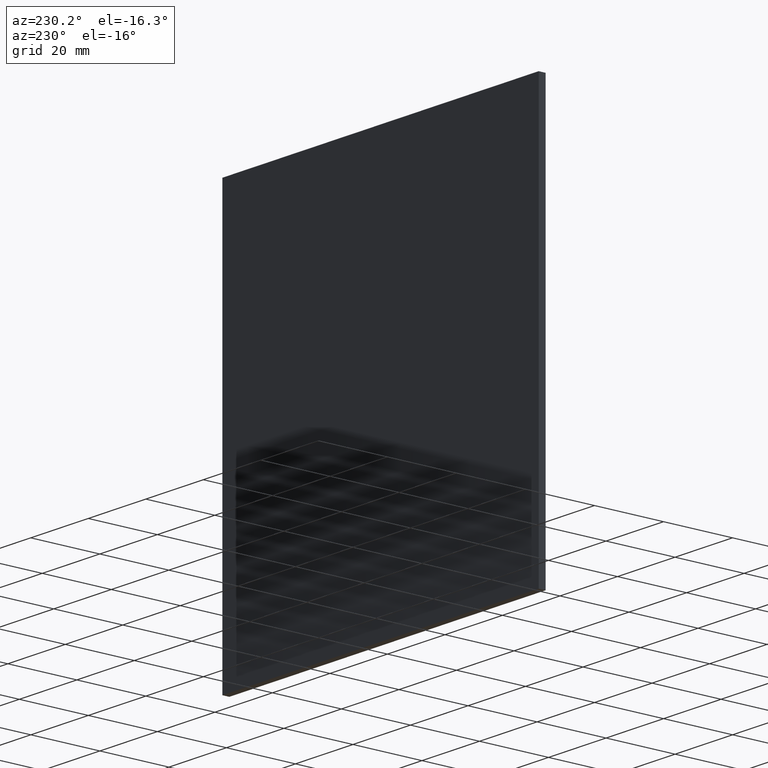
[diagram: clean part render]
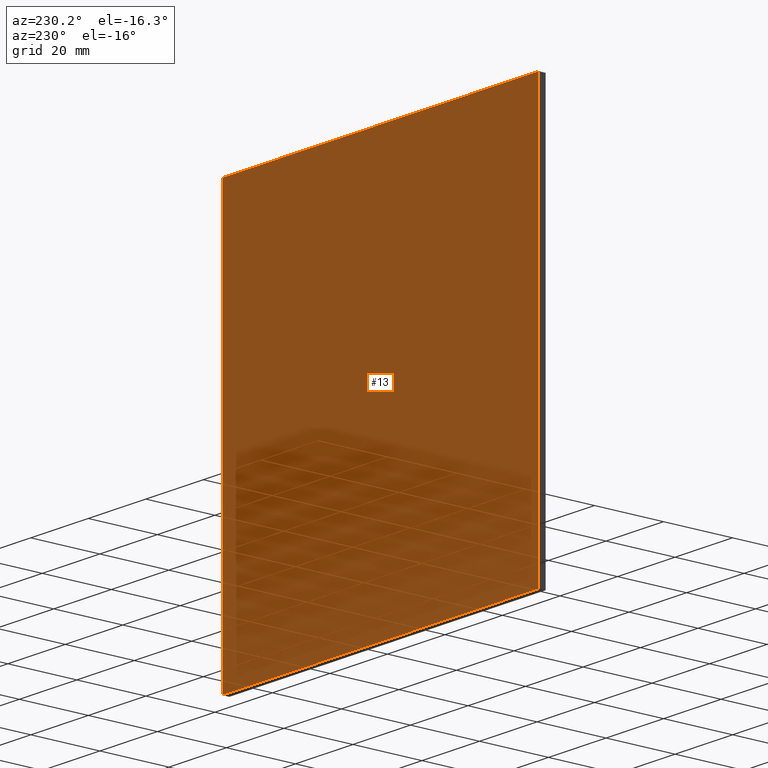
[diagram: same view with one face highlighted and labeled with its STEP entity id]
A machine part, auxiliary view. The second image highlights one B-rep face of the part: STEP entity #13.
In plain terms, the highlighted planar face has unit normal (0, 1, 0).
Its self-contained STEP definition (entity closure, byte-faithful):
#3 = DIRECTION ( 'NONE',  ( 0.0000000000000000000, -0.0000000000000000000, 1.000000000000000000 ) ) ;
#5 = DIRECTION ( 'NONE',  ( 1.734723475976807100E-016, 0.0000000000000000000, 1.000000000000000000 ) ) ;
#7 = VECTOR ( 'NONE', #10, 1000.000000000000000 ) ;
#10 = DIRECTION ( 'NONE',  ( -5.782411586589357400E-017, -0.0000000000000000000, -1.000000000000000000 ) ) ;
#13 = ADVANCED_FACE ( 'NONE', ( #15 ), #23, .T. ) ;
#15 = FACE_OUTER_BOUND ( 'NONE', #185, .T. ) ;
#17 = VERTEX_POINT ( 'NONE', #127 ) ;
#21 = DIRECTION ( 'NONE',  ( 0.0000000000000000000, 1.000000000000000000, 0.0000000000000000000 ) ) ;
#23 = PLANE ( 'NONE',  #139 ) ;
#25 = CARTESIAN_POINT ( 'NONE',  ( 55.00000000000000700, 2.000000000000000000, -60.00000000000002100 ) ) ;
#47 = VECTOR ( 'NONE', #100, 1000.000000000000000 ) ;
#58 = CARTESIAN_POINT ( 'NONE',  ( -54.99999999999998600, 2.000000000000000000, 59.99999999999997900 ) ) ;
#60 = ORIENTED_EDGE ( 'NONE', *, *, #71, .T. ) ;
#71 = EDGE_CURVE ( 'NONE', #17, #150, #176, .T. ) ;
#78 = LINE ( 'NONE', #126, #90 ) ;
#79 = VERTEX_POINT ( 'NONE', #124 ) ;
#82 = EDGE_CURVE ( 'NONE', #150, #173, #94, .T. ) ;
#90 = VECTOR ( 'NONE', #5, 1000.000000000000000 ) ;
#91 = EDGE_CURVE ( 'NONE', #173, #79, #78, .T. ) ;
#92 = CARTESIAN_POINT ( 'NONE',  ( -55.00000000000000700, 2.000000000000000000, -60.00000000000002100 ) ) ;
#94 = LINE ( 'NONE', #98, #128 ) ;
#98 = CARTESIAN_POINT ( 'NONE',  ( -55.00000000000000700, 2.000000000000000000, -60.00000000000002100 ) ) ;
#100 = DIRECTION ( 'NONE',  ( 1.000000000000000000, 0.0000000000000000000, 0.0000000000000000000 ) ) ;
#124 = CARTESIAN_POINT ( 'NONE',  ( -54.99999999999998600, 2.000000000000000000, 59.99999999999997900 ) ) ;
#126 = CARTESIAN_POINT ( 'NONE',  ( -55.00000000000000700, 2.000000000000000000, -60.00000000000002100 ) ) ;
#127 = CARTESIAN_POINT ( 'NONE',  ( 55.00000000000001400, 2.000000000000000000, 59.99999999999997900 ) ) ;
#128 = VECTOR ( 'NONE', #136, 1000.000000000000000 ) ;
#129 = EDGE_CURVE ( 'NONE', #79, #17, #165, .T. ) ;
#136 = DIRECTION ( 'NONE',  ( -1.000000000000000000, -0.0000000000000000000, -0.0000000000000000000 ) ) ;
#137 = ORIENTED_EDGE ( 'NONE', *, *, #82, .T. ) ;
#139 = AXIS2_PLACEMENT_3D ( 'NONE', #178, #21, #3 ) ;
#150 = VERTEX_POINT ( 'NONE', #154 ) ;
#154 = CARTESIAN_POINT ( 'NONE',  ( 55.00000000000000700, 2.000000000000000000, -60.00000000000002100 ) ) ;
#159 = ORIENTED_EDGE ( 'NONE', *, *, #129, .T. ) ;
#164 = ORIENTED_EDGE ( 'NONE', *, *, #91, .T. ) ;
#165 = LINE ( 'NONE', #58, #47 ) ;
#173 = VERTEX_POINT ( 'NONE', #92 ) ;
#176 = LINE ( 'NONE', #25, #7 ) ;
#178 = CARTESIAN_POINT ( 'NONE',  ( 0.0000000000000000000, 2.000000000000000000, 0.0000000000000000000 ) ) ;
#185 = EDGE_LOOP ( 'NONE', ( #60, #137, #164, #159 ) ) ;